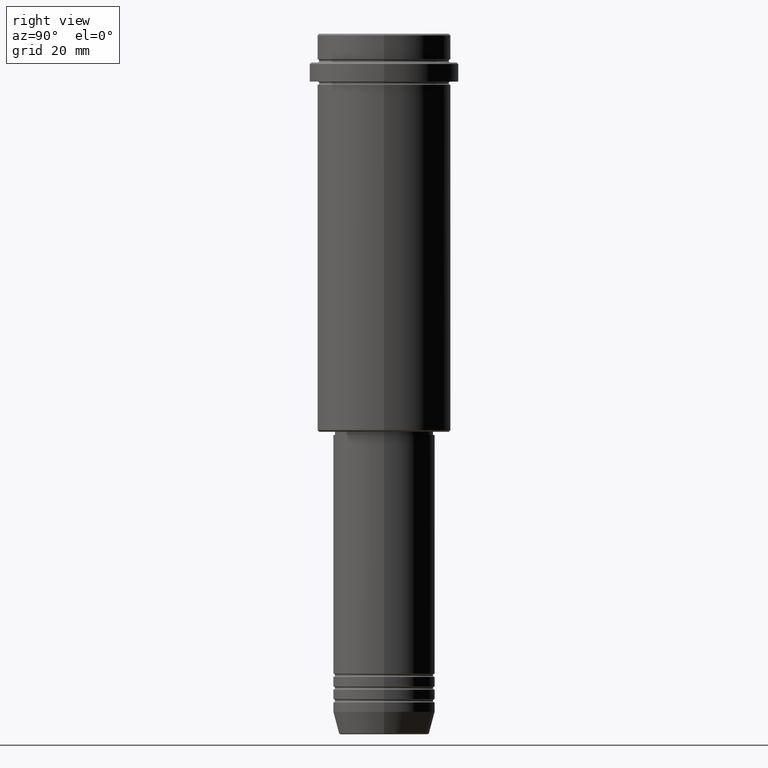
[diagram: clean part render]
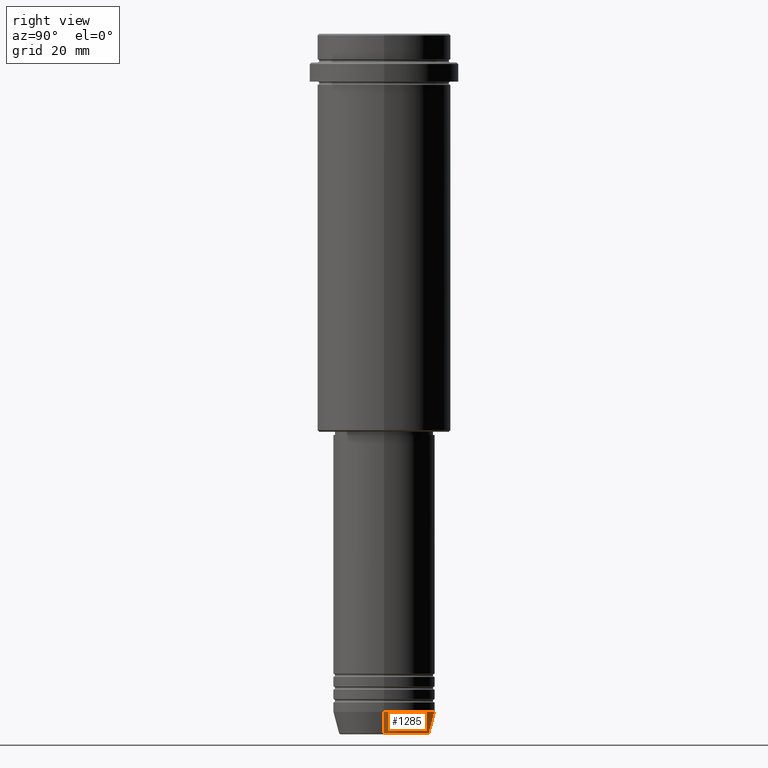
[diagram: same view with one face highlighted and labeled with its STEP entity id]
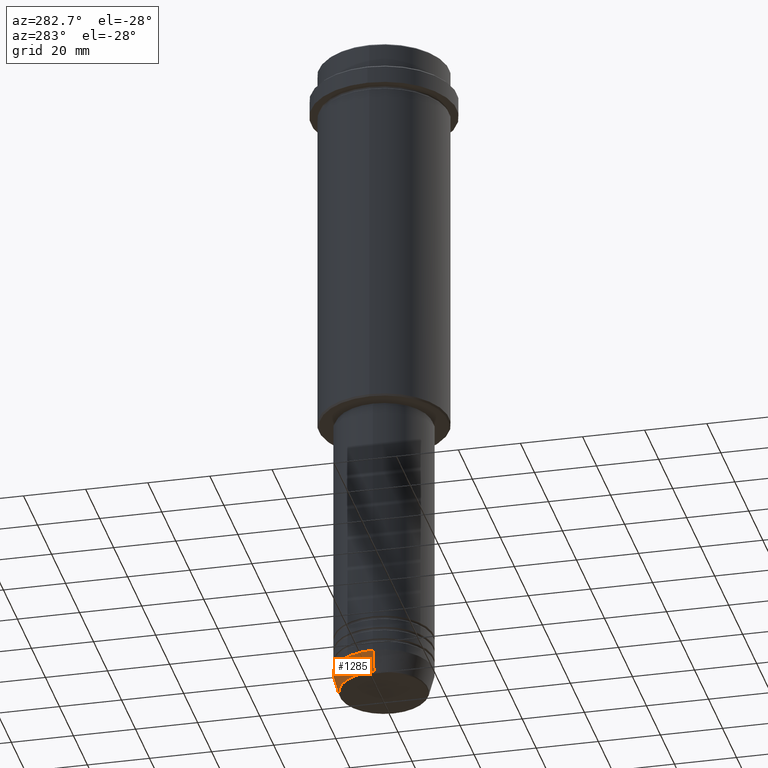
[diagram: same view with one face highlighted and labeled with its STEP entity id]
A machine part, right view. The second image highlights one B-rep face of the part: STEP entity #1285.
A second angle (auxiliary view) of the same face is appended — the face is thin or edge-on in the first view.
In plain terms, the highlighted conical surface has half-angle 15 deg.
Its self-contained STEP definition (entity closure, byte-faithful):
#1 = CARTESIAN_POINT ( 'NONE',  ( 16.00000000000000000, 0.000000000000000000, -213.0000000000000284 ) ) ;
#50 = EDGE_CURVE ( 'NONE', #1406, #823, #1415, .T. ) ;
#54 = CARTESIAN_POINT ( 'NONE',  ( 0.000000000000000000, 0.000000000000000000, -213.0000000000000284 ) ) ;
#57 = VECTOR ( 'NONE', #644, 1000.000000000000114 ) ;
#81 = DIRECTION ( 'NONE',  ( 1.000000000000000000, 0.000000000000000000, 0.000000000000000000 ) ) ;
#85 = ORIENTED_EDGE ( 'NONE', *, *, #1188, .T. ) ;
#218 = ORIENTED_EDGE ( 'NONE', *, *, #50, .F. ) ;
#221 = VERTEX_POINT ( 'NONE', #251 ) ;
#251 = CARTESIAN_POINT ( 'NONE',  ( -14.22365507213720548, 1.850665122131324520E-15, -219.6294095225512706 ) ) ;
#262 = CARTESIAN_POINT ( 'NONE',  ( -16.00000000000000000, 1.959434878635765131E-15, -213.0000000000000284 ) ) ;
#271 = FACE_OUTER_BOUND ( 'NONE', #887, .T. ) ;
#369 = DIRECTION ( 'NONE',  ( -0.000000000000000000, -0.000000000000000000, 1.000000000000000000 ) ) ;
#405 = DIRECTION ( 'NONE',  ( -0.000000000000000000, -0.000000000000000000, 1.000000000000000000 ) ) ;
#455 = ORIENTED_EDGE ( 'NONE', *, *, #1083, .T. ) ;
#591 = ORIENTED_EDGE ( 'NONE', *, *, #1065, .F. ) ;
#640 = CARTESIAN_POINT ( 'NONE',  ( -16.00000000000000000, 1.959434878635765131E-15, -213.0000000000000284 ) ) ;
#644 = DIRECTION ( 'NONE',  ( 0.2588190451025205174, 0.000000000000000000, 0.9659258262890684232 ) ) ;
#735 = CARTESIAN_POINT ( 'NONE',  ( 0.000000000000000000, 0.000000000000000000, -219.6294095225512706 ) ) ;
#823 = VERTEX_POINT ( 'NONE', #1029 ) ;
#887 = EDGE_LOOP ( 'NONE', ( #85, #455, #591, #218 ) ) ;
#982 = LINE ( 'NONE', #640, #1205 ) ;
#1029 = CARTESIAN_POINT ( 'NONE',  ( 16.00000000000000000, 0.000000000000000000, -213.0000000000000284 ) ) ;
#1043 = DIRECTION ( 'NONE',  ( 1.000000000000000000, 0.000000000000000000, 0.000000000000000000 ) ) ;
#1065 = EDGE_CURVE ( 'NONE', #823, #1327, #1296, .T. ) ;
#1081 = DIRECTION ( 'NONE',  ( -0.2588190451025205174, 3.169619151431761243E-17, 0.9659258262890684232 ) ) ;
#1083 = EDGE_CURVE ( 'NONE', #221, #1327, #982, .T. ) ;
#1124 = CARTESIAN_POINT ( 'NONE',  ( 14.22365507213720548, 0.000000000000000000, -219.6294095225512706 ) ) ;
#1146 = CIRCLE ( 'NONE', #1320, 14.22365507213720548 ) ;
#1188 = EDGE_CURVE ( 'NONE', #1406, #221, #1146, .T. ) ;
#1205 = VECTOR ( 'NONE', #1081, 1000.000000000000114 ) ;
#1230 = CONICAL_SURFACE ( 'NONE', #1299, 16.00000000000000000, 0.2617993877991491303 ) ;
#1239 = DIRECTION ( 'NONE',  ( 1.000000000000000000, 0.000000000000000000, 0.000000000000000000 ) ) ;
#1263 = DIRECTION ( 'NONE',  ( -0.000000000000000000, -0.000000000000000000, 1.000000000000000000 ) ) ;
#1285 = ADVANCED_FACE ( 'NONE', ( #271 ), #1230, .T. ) ;
#1296 = CIRCLE ( 'NONE', #1343, 16.00000000000000000 ) ;
#1299 = AXIS2_PLACEMENT_3D ( 'NONE', #54, #369, #1043 ) ;
#1320 = AXIS2_PLACEMENT_3D ( 'NONE', #735, #405, #81 ) ;
#1327 = VERTEX_POINT ( 'NONE', #262 ) ;
#1343 = AXIS2_PLACEMENT_3D ( 'NONE', #1381, #1263, #1239 ) ;
#1381 = CARTESIAN_POINT ( 'NONE',  ( 0.000000000000000000, 0.000000000000000000, -213.0000000000000284 ) ) ;
#1406 = VERTEX_POINT ( 'NONE', #1124 ) ;
#1415 = LINE ( 'NONE', #1, #57 ) ;